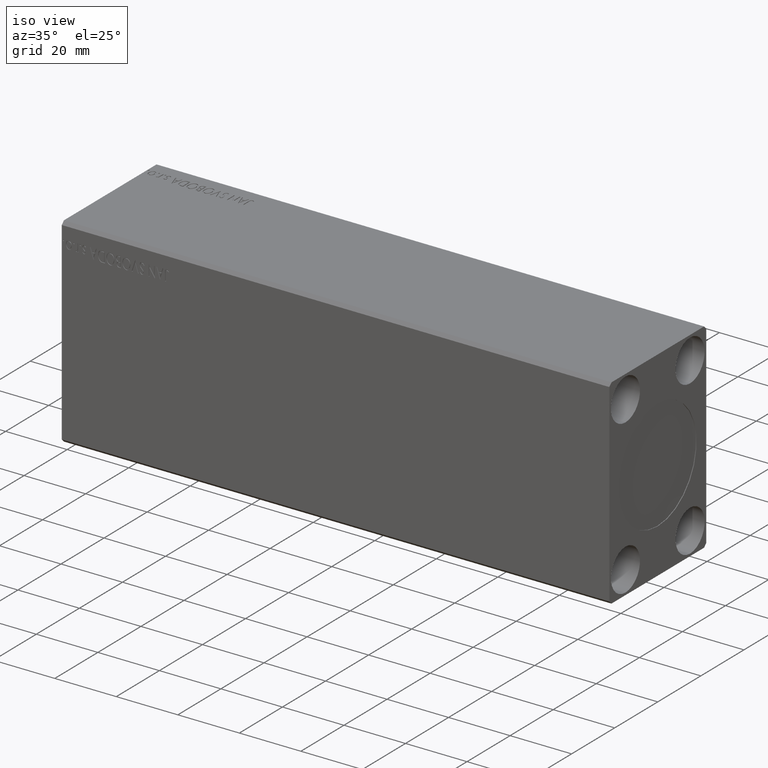
[diagram: clean part render]
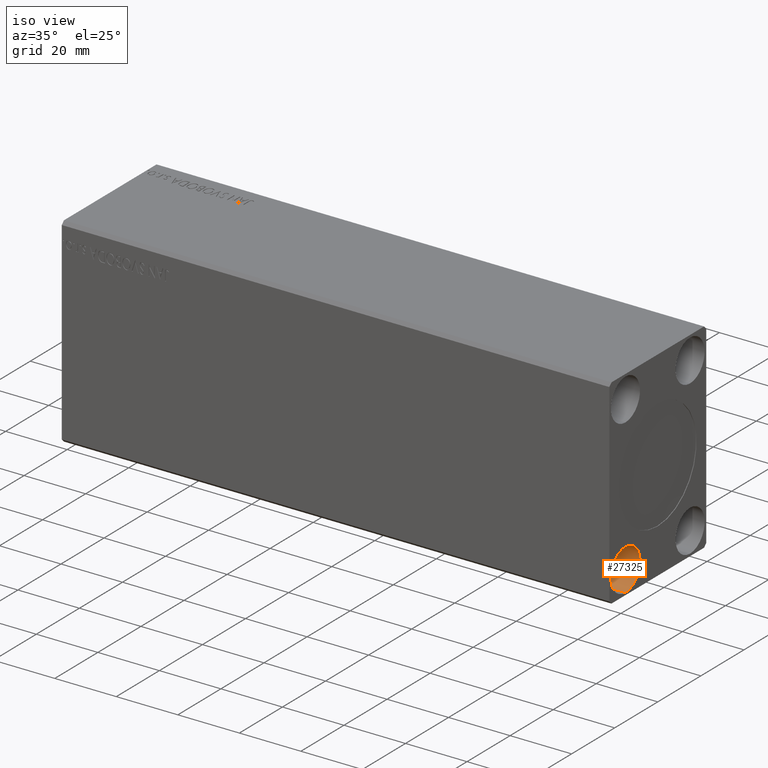
[diagram: same view with one face highlighted and labeled with its STEP entity id]
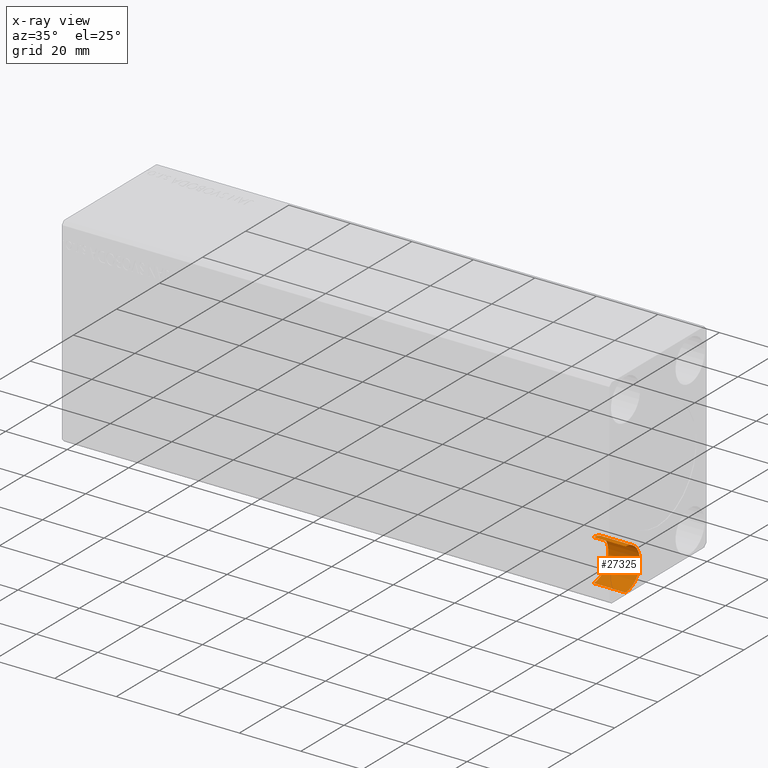
[diagram: x-ray of the same camera — body ghosted, the highlighted face saturated]
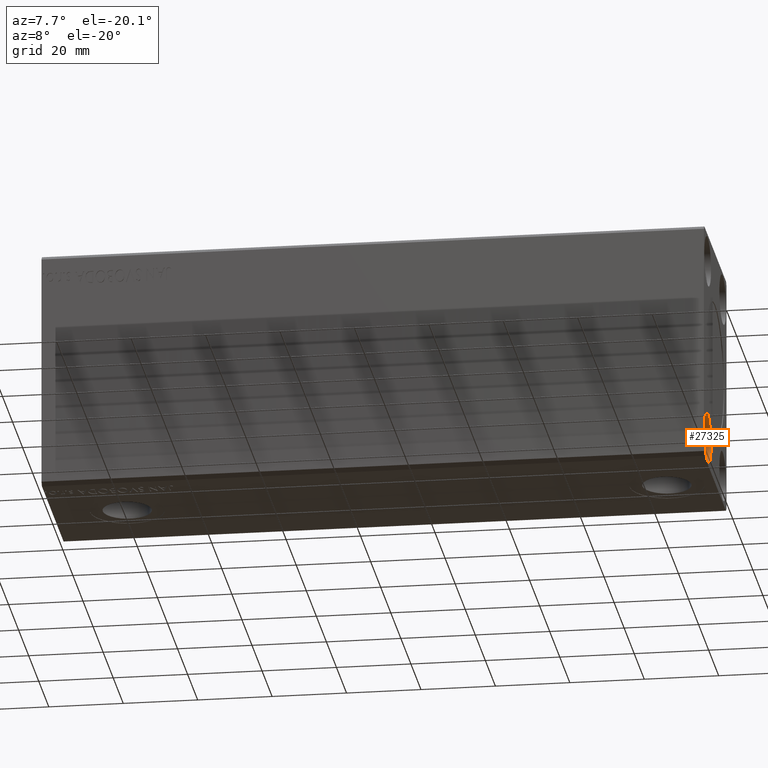
[diagram: same view with one face highlighted and labeled with its STEP entity id]
A machine part, iso view. The second image highlights one B-rep face of the part: STEP entity #27325.
The next image is the same camera in x-ray: the body ghosted, the highlighted face saturated — about 0% of this face is hidden behind the body in this view.
A second angle (auxiliary view) of the same face is appended — the face is thin or edge-on in the first view.
In plain terms, the highlighted cylindrical surface (edge-blend (fillet) strip) has radius 6.75 mm, axis along (1, -0, -0).
Its self-contained STEP definition (entity closure, byte-faithful):
#1075 = CARTESIAN_POINT ( 'NONE',  ( 167.6699999999999875, -15.00000000000000000, -18.25000000000000355 ) ) ;
#2078 = DIRECTION ( 'NONE',  ( 1.000000000000000000, -0.000000000000000000, -0.000000000000000000 ) ) ;
#3306 = DIRECTION ( 'NONE',  ( 0.000000000000000000, 0.000000000000000000, -1.000000000000000000 ) ) ;
#3729 = CARTESIAN_POINT ( 'NONE',  ( 167.6699999999999875, -15.00000000000000000, -25.00000000000000000 ) ) ;
#4429 = CARTESIAN_POINT ( 'NONE',  ( 167.6699999999999875, -15.00000000000000000, -31.75000000000000000 ) ) ;
#7697 = ORIENTED_EDGE ( 'NONE', *, *, #20946, .T. ) ;
#9354 = VECTOR ( 'NONE', #14768, 1000.000000000000000 ) ;
#10468 = LINE ( 'NONE', #13278, #17590 ) ;
#12063 = AXIS2_PLACEMENT_3D ( 'NONE', #35624, #42510, #3306 ) ;
#12149 = ORIENTED_EDGE ( 'NONE', *, *, #28038, .F. ) ;
#12457 = VERTEX_POINT ( 'NONE', #36318 ) ;
#13278 = CARTESIAN_POINT ( 'NONE',  ( 167.6699999999999875, -15.00000000000000000, -18.25000000000000711 ) ) ;
#13639 = DIRECTION ( 'NONE',  ( 1.000000000000000000, -0.000000000000000000, -0.000000000000000000 ) ) ;
#14768 = DIRECTION ( 'NONE',  ( 1.000000000000000000, -0.000000000000000000, -0.000000000000000000 ) ) ;
#16121 = CARTESIAN_POINT ( 'NONE',  ( 178.0000000000000000, -15.00000000000000000, -31.75000000000000000 ) ) ;
#17559 = VERTEX_POINT ( 'NONE', #31738 ) ;
#17590 = VECTOR ( 'NONE', #26613, 1000.000000000000000 ) ;
#18451 = CARTESIAN_POINT ( 'NONE',  ( 178.0000000000000000, -15.00000000000000000, -25.00000000000000000 ) ) ;
#18856 = AXIS2_PLACEMENT_3D ( 'NONE', #18451, #2078, #28353 ) ;
#20946 = EDGE_CURVE ( 'NONE', #36958, #12457, #30497, .T. ) ;
#21207 = EDGE_LOOP ( 'NONE', ( #12149, #24065, #42247, #7697 ) ) ;
#23534 = DIRECTION ( 'NONE',  ( 0.000000000000000000, 0.000000000000000000, -1.000000000000000000 ) ) ;
#24065 = ORIENTED_EDGE ( 'NONE', *, *, #29980, .F. ) ;
#24448 = CIRCLE ( 'NONE', #12063, 6.749999999999999112 ) ;
#24458 = LINE ( 'NONE', #4429, #9354 ) ;
#26613 = DIRECTION ( 'NONE',  ( 1.000000000000000000, -0.000000000000000000, -0.000000000000000000 ) ) ;
#27325 = ADVANCED_FACE ( 'NONE', ( #33243 ), #27398, .F. ) ;
#27398 = CYLINDRICAL_SURFACE ( 'NONE', #31371, 6.749999999999999112 ) ;
#28038 = EDGE_CURVE ( 'NONE', #40967, #12457, #10468, .T. ) ;
#28353 = DIRECTION ( 'NONE',  ( 0.000000000000000000, 0.000000000000000000, -1.000000000000000000 ) ) ;
#29980 = EDGE_CURVE ( 'NONE', #17559, #40967, #24448, .T. ) ;
#30497 = CIRCLE ( 'NONE', #18856, 6.749999999999999112 ) ;
#31058 = EDGE_CURVE ( 'NONE', #17559, #36958, #24458, .T. ) ;
#31371 = AXIS2_PLACEMENT_3D ( 'NONE', #3729, #13639, #23534 ) ;
#31738 = CARTESIAN_POINT ( 'NONE',  ( 167.6699999999999875, -15.00000000000000000, -31.75000000000000000 ) ) ;
#33243 = FACE_OUTER_BOUND ( 'NONE', #21207, .T. ) ;
#35624 = CARTESIAN_POINT ( 'NONE',  ( 167.6699999999999875, -15.00000000000000000, -25.00000000000000000 ) ) ;
#36318 = CARTESIAN_POINT ( 'NONE',  ( 178.0000000000000000, -15.00000000000000000, -18.25000000000000355 ) ) ;
#36958 = VERTEX_POINT ( 'NONE', #16121 ) ;
#40967 = VERTEX_POINT ( 'NONE', #1075 ) ;
#42247 = ORIENTED_EDGE ( 'NONE', *, *, #31058, .T. ) ;
#42510 = DIRECTION ( 'NONE',  ( 1.000000000000000000, -0.000000000000000000, -0.000000000000000000 ) ) ;